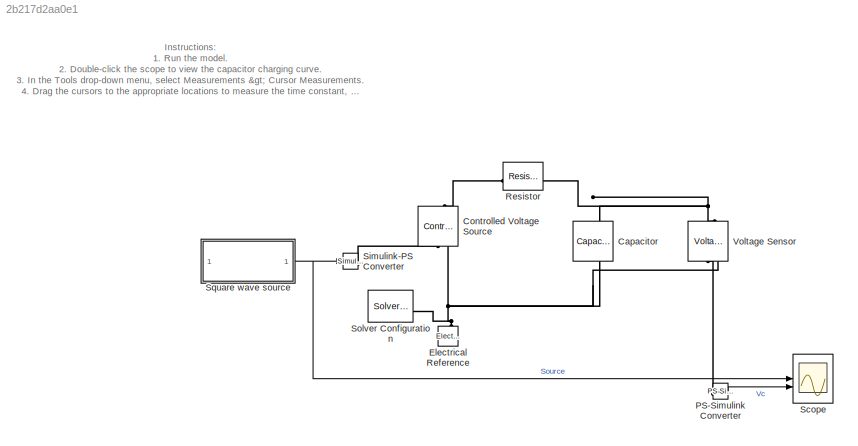
MODEL slx_2b217d2aa0e1
KIND model
CONFIG AbsTol = auto
CONFIG EnableMultiTasking = off
CONFIG FixedStep = auto
CONFIG MaxStep = 1e-5
CONFIG MinStep = auto
CONFIG RelTol = 1e-3
CONFIG SampleTimeConstraint = Unconstrained
CONFIG SolverName = VariableStepAuto
CONFIG StartTime = 0.0
CONFIG StopTime = 0.002
BLOCK [Reference] Capacitor  REF=ee_lib/Passive/Capacitor
  NameLocation = left
  SourceBlock = ee_lib/Passive/Capacitor
  SourceType = Capacitor
BLOCK [Reference] Controlled Voltage Source  REF=fl_lib/Electrical/Electrical Sources/Controlled Voltage
Source
  NameLocation = right
  SourceBlock = fl_lib/Electrical/Electrical Sources/Controlled Voltage\nSource
  SourceType = Controlled Voltage\nSource
BLOCK [Reference] Electrical Reference  REF=fl_lib/Electrical/Electrical Elements/Electrical Reference
  NameLocation = right
  SourceBlock = fl_lib/Electrical/Electrical Elements/Electrical Reference
  SourceType = Electrical Reference
BLOCK [Reference] PS-Simulink Converter  REF=nesl_utility/PS-Simulink
Converter
  SourceBlock = nesl_utility/PS-Simulink\nConverter
  SourceType = PS-Simulink\nConverter
BLOCK [Reference] Resistor  REF=ee_lib/Passive/Resistor
  SourceBlock = ee_lib/Passive/Resistor
  SourceType = Resistor
BLOCK [Scope] Scope
  Floating = off
  NameLocation = top
  NumInputPorts = 2
  ScopeSpecificationString = Simulink.scopes.TimeScopeBlockCfg('CurrentConfiguration', extmgr.ConfigurationSet(extmgr.Configuration('Core','General UI',true),extmgr.Configuration('Core','Source UI',true),extmgr.Configuration('Sources','WiredSimulink',true),extmgr.Configuration('Visuals','Time Domain',true,'SerializedDisplays',{struct('MinYLimReal','-1.5','MaxYLimReal','13.5','YLabelReal','V_C (V)','MinYLimMag','0.00000','MaxY...<+1710ch>
BLOCK [Reference] Simulink-PS Converter  REF=nesl_utility/Simulink-PS
Converter
  SourceBlock = nesl_utility/Simulink-PS\nConverter
  SourceType = Simulink-PS\nConverter
BLOCK [Reference] Solver Configuration  REF=nesl_utility/Solver
Configuration
  SourceBlock = nesl_utility/Solver\nConfiguration
  SourceType = Solver\nConfiguration
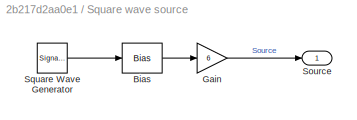
BLOCK [SubSystem] Square wave source
BLOCK [Bias] Square wave source/Bias
  Bias = 1
  SaturateOnIntegerOverflow = off
BLOCK [Gain] Square wave source/Gain
  Gain = 6
BLOCK [Outport] Square wave source/Source
BLOCK [SignalGenerator] Square wave source/Square Wave Generator
  Frequency = 500
  WaveForm = square
BLOCK [Reference] Voltage Sensor  REF=fl_lib/Electrical/Electrical Sensors/Voltage Sensor
  NameLocation = right
  SourceBlock = fl_lib/Electrical/Electrical Sensors/Voltage Sensor
  SourceType = Voltage Sensor
ANNOTATION (root): Instructions : 1. Run the model. 2. Double-click the scope to view the capacitor charging curve. 3. In the Tools drop-down menu, select Measurements > Cursor Measurements . 4. Drag the cursors to the appropriate locations to measure the time constant, 𝜏.
LINE PS-Simulink Converter:1 -> Scope:2
LINE Square wave source/Bias:1 -> Square wave source/Gain:1
LINE Square wave source/Gain:1 -> Square wave source/Source:1
LINE Square wave source/Square Wave Generator:1 -> Square wave source/Bias:1
NET Square wave source:1 -> Scope:1, Simulink-PS Converter:1
PNET net1: Capacitor:LConn1 -- Resistor:RConn1 -- Voltage Sensor:LConn1
PNET net2: Capacitor:RConn1 -- Controlled Voltage Source:RConn2 -- Electrical Reference:LConn1 -- Solver Configuration:RConn1 -- Voltage Sensor:RConn2
PLINE Controlled Voltage Source:LConn1 -- Resistor:LConn1
PLINE Controlled Voltage Source:RConn1 -- Simulink-PS Converter:RConn1
PLINE PS-Simulink Converter:LConn1 -- Voltage Sensor:RConn1
note: NET lines group one-source signal fan-out (src -> all destinations, sorted); 1:1 wires keep LINE; PNET lines group multi-terminal physical nets as a canonical sorted terminal list (undirected conserving connections); 2-terminal nets keep the pairwise PLINE form
